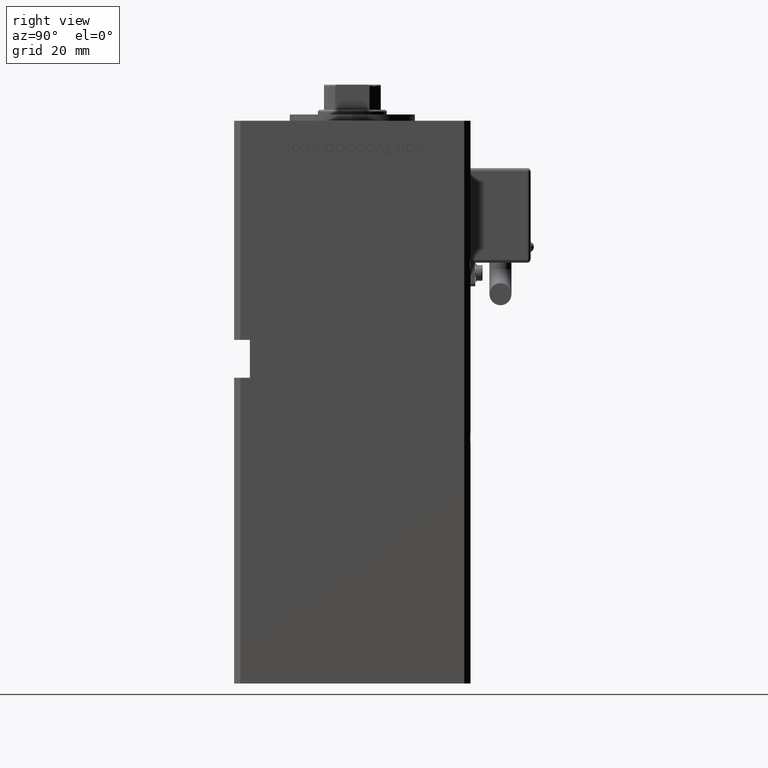
[diagram: clean part render]
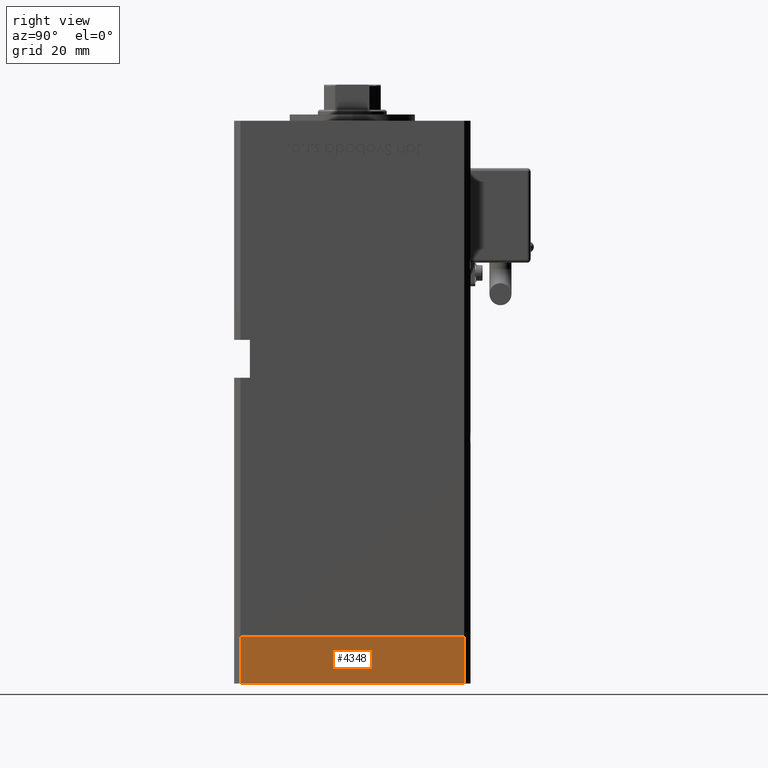
[diagram: same view with one face highlighted and labeled with its STEP entity id]
A machine part, right view. The second image highlights one B-rep face of the part: STEP entity #4348.
In plain terms, the highlighted planar face has unit normal (1, 0, 0).
Its self-contained STEP definition (entity closure, byte-faithful):
#1201 = LINE ( 'NONE', #44045, #13486 ) ;
#1540 = CARTESIAN_POINT ( 'NONE',  ( -42.50000000000000711, 35.49999999999997158, -15.00000000000000000 ) ) ;
#3131 = ORIENTED_EDGE ( 'NONE', *, *, #47088, .T. ) ;
#3646 = DIRECTION ( 'NONE',  ( 0.000000000000000000, 0.000000000000000000, 1.000000000000000000 ) ) ;
#4348 = ADVANCED_FACE ( 'NONE', ( #35632 ), #14101, .T. ) ;
#5265 = ORIENTED_EDGE ( 'NONE', *, *, #34031, .F. ) ;
#5452 = VERTEX_POINT ( 'NONE', #43563 ) ;
#7260 = DIRECTION ( 'NONE',  ( 9.773090005503140331E-17, -1.000000000000000000, 0.000000000000000000 ) ) ;
#9810 = ORIENTED_EDGE ( 'NONE', *, *, #14656, .T. ) ;
#9841 = ORIENTED_EDGE ( 'NONE', *, *, #26652, .F. ) ;
#11239 = CARTESIAN_POINT ( 'NONE',  ( -42.50000000000000711, 35.49999999999997158, -15.00000000000000000 ) ) ;
#13486 = VECTOR ( 'NONE', #35810, 1000.000000000000000 ) ;
#14101 = PLANE ( 'NONE',  #24876 ) ;
#14656 = EDGE_CURVE ( 'NONE', #5452, #38923, #1201, .T. ) ;
#15735 = VECTOR ( 'NONE', #3646, 1000.000000000000000 ) ;
#17550 = CARTESIAN_POINT ( 'NONE',  ( -42.50000000000000711, 35.49999999999997158, -15.00000000000000000 ) ) ;
#20247 = CARTESIAN_POINT ( 'NONE',  ( -42.50000000000000711, 35.49999999999997158, 0.000000000000000000 ) ) ;
#20310 = VERTEX_POINT ( 'NONE', #1540 ) ;
#23758 = VERTEX_POINT ( 'NONE', #49662 ) ;
#24876 = AXIS2_PLACEMENT_3D ( 'NONE', #11239, #29361, #28534 ) ;
#26652 = EDGE_CURVE ( 'NONE', #23758, #38923, #55141, .T. ) ;
#28534 = DIRECTION ( 'NONE',  ( 9.773090005503140331E-17, -1.000000000000000000, 0.000000000000000000 ) ) ;
#28540 = LINE ( 'NONE', #46118, #51474 ) ;
#29361 = DIRECTION ( 'NONE',  ( -1.000000000000000000, -9.773090005503140331E-17, 0.000000000000000000 ) ) ;
#31906 = VECTOR ( 'NONE', #37262, 1000.000000000000000 ) ;
#34031 = EDGE_CURVE ( 'NONE', #20310, #23758, #51881, .T. ) ;
#35632 = FACE_OUTER_BOUND ( 'NONE', #47125, .T. ) ;
#35810 = DIRECTION ( 'NONE',  ( 0.000000000000000000, 0.000000000000000000, 1.000000000000000000 ) ) ;
#37262 = DIRECTION ( 'NONE',  ( 9.773090005503140331E-17, -1.000000000000000000, 0.000000000000000000 ) ) ;
#38806 = CARTESIAN_POINT ( 'NONE',  ( -42.50000000000000000, -35.50000000000000711, 0.000000000000000000 ) ) ;
#38923 = VERTEX_POINT ( 'NONE', #38806 ) ;
#43563 = CARTESIAN_POINT ( 'NONE',  ( -42.50000000000000000, -35.50000000000000711, -15.00000000000000000 ) ) ;
#44045 = CARTESIAN_POINT ( 'NONE',  ( -42.50000000000000000, -35.50000000000000711, -15.00000000000000000 ) ) ;
#46118 = CARTESIAN_POINT ( 'NONE',  ( -42.50000000000000711, 35.49999999999997158, -15.00000000000000000 ) ) ;
#47088 = EDGE_CURVE ( 'NONE', #20310, #5452, #28540, .T. ) ;
#47125 = EDGE_LOOP ( 'NONE', ( #9841, #5265, #3131, #9810 ) ) ;
#49662 = CARTESIAN_POINT ( 'NONE',  ( -42.50000000000000711, 35.49999999999997158, 0.000000000000000000 ) ) ;
#51474 = VECTOR ( 'NONE', #7260, 1000.000000000000000 ) ;
#51881 = LINE ( 'NONE', #17550, #15735 ) ;
#55141 = LINE ( 'NONE', #20247, #31906 ) ;